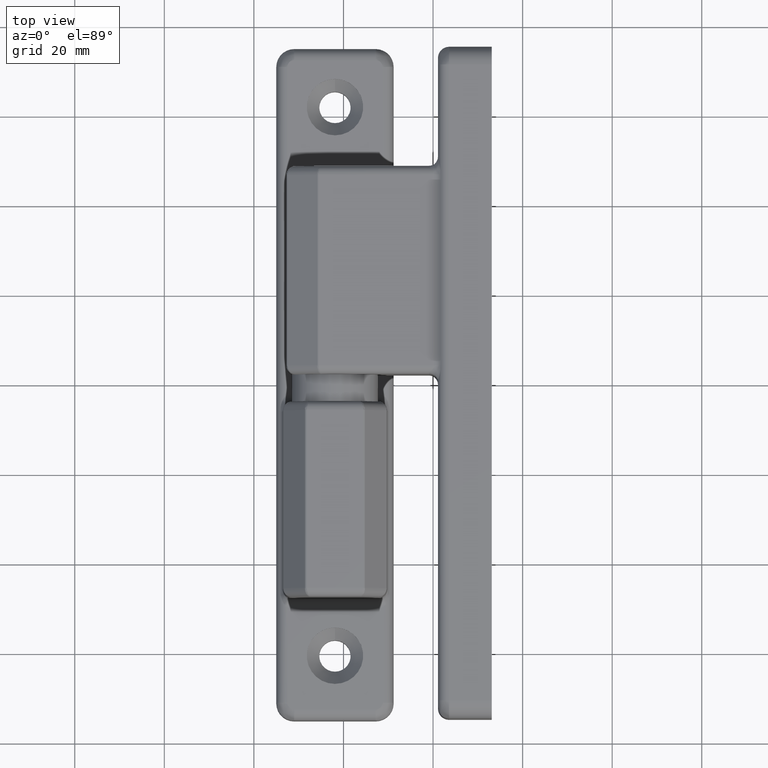
[diagram: clean part render]
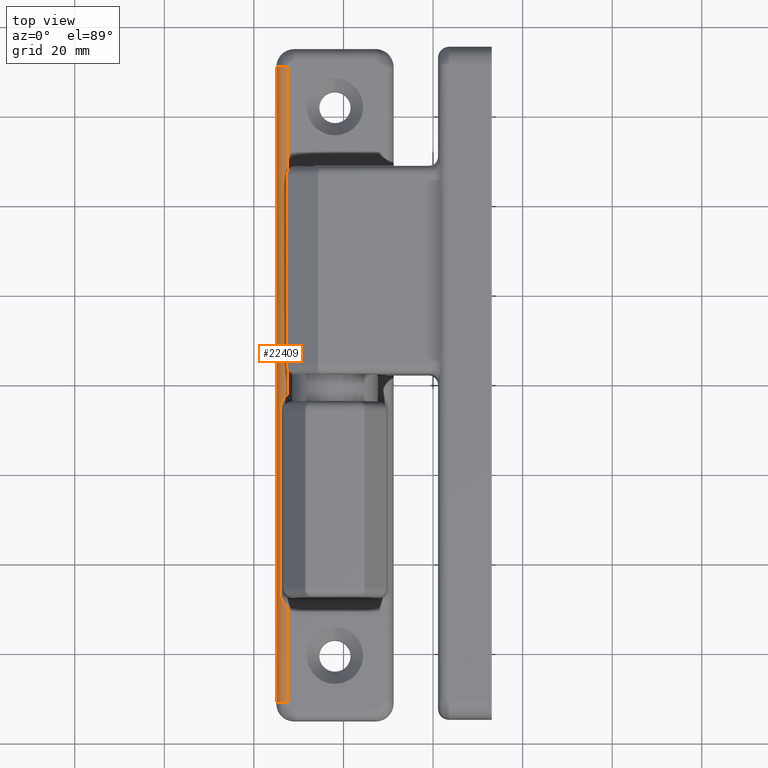
[diagram: same view with one face highlighted and labeled with its STEP entity id]
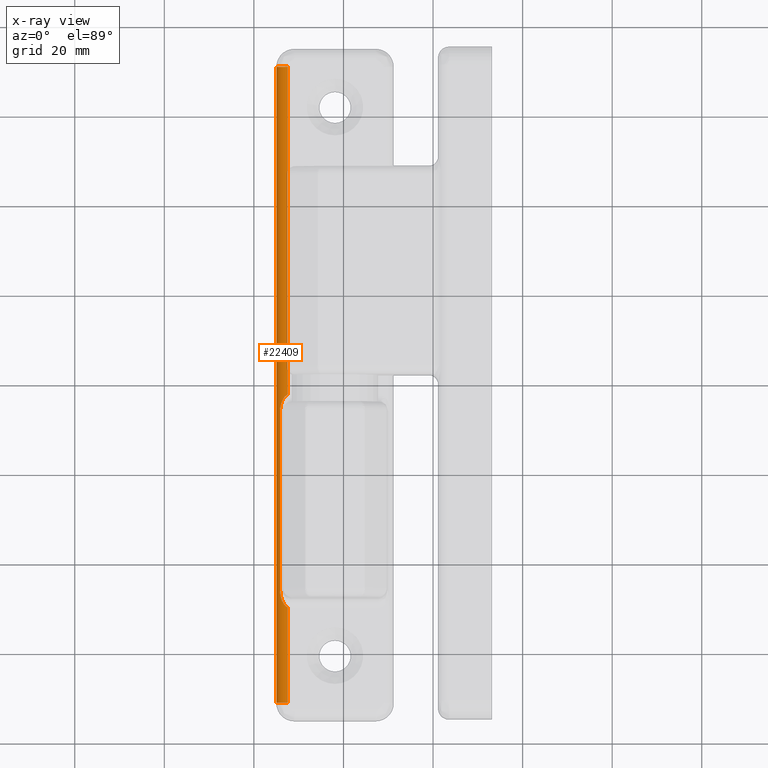
[diagram: x-ray of the same camera — body ghosted, the highlighted face saturated]
A machine part, top view. The second image highlights one B-rep face of the part: STEP entity #22409.
The next image is the same camera in x-ray: the body ghosted, the highlighted face saturated — about 4% of this face is hidden behind the body in this view.
In plain terms, the highlighted cylindrical surface (edge-blend (fillet) strip) has radius 2.5 mm, axis along (0, 1, 0).
Its self-contained STEP definition (entity closure, byte-faithful):
#899=CYLINDRICAL_SURFACE('',#23908,2.5);
#1404=B_SPLINE_CURVE_WITH_KNOTS('',3,(#32282,#32283,#32284,#32285,#32286,
#32287),.UNSPECIFIED.,.F.,.F.,(4,1,1,4),(-0.542164704906655,-0.387260503504754,
-0.232356302102852,0.),.UNSPECIFIED.);
#1406=B_SPLINE_CURVE_WITH_KNOTS('',3,(#32338,#32339,#32340,#32341,#32342,
#32343,#32344),.UNSPECIFIED.,.F.,.F.,(4,1,1,1,4),(-0.542162887906352,-0.387259205647394,
-0.232355523388437,-0.116177761694218,0.),.UNSPECIFIED.);
#2330=CIRCLE('',#23909,2.5);
#2331=CIRCLE('',#23910,2.5);
#3899=FACE_OUTER_BOUND('',#5366,.T.);
#5366=EDGE_LOOP('',(#14109,#14110,#14111,#14112,#14113,#14114,#14115,#14116));
#6883=LINE('',#32298,#7781);
#6898=LINE('',#32451,#7796);
#6899=LINE('',#32455,#7797);
#6900=LINE('',#32458,#7798);
#7781=VECTOR('',#26399,39.7);
#7796=VECTOR('',#26456,73.2270166537926);
#7797=VECTOR('',#26459,142.);
#7798=VECTOR('',#26462,21.3270166537926);
#8698=VERTEX_POINT('',#32246);
#8700=VERTEX_POINT('',#32281);
#8702=VERTEX_POINT('',#32297);
#8704=VERTEX_POINT('',#32337);
#8721=VERTEX_POINT('',#32450);
#8722=VERTEX_POINT('',#32452);
#8723=VERTEX_POINT('',#32454);
#8724=VERTEX_POINT('',#32456);
#10674=EDGE_CURVE('',#8698,#8700,#1404,.T.);
#10677=EDGE_CURVE('',#8700,#8702,#6883,.T.);
#10680=EDGE_CURVE('',#8702,#8704,#1406,.T.);
#10708=EDGE_CURVE('',#8698,#8721,#6898,.T.);
#10709=EDGE_CURVE('',#8721,#8722,#2330,.T.);
#10710=EDGE_CURVE('',#8722,#8723,#6899,.T.);
#10711=EDGE_CURVE('',#8724,#8723,#2331,.T.);
#10712=EDGE_CURVE('',#8724,#8704,#6900,.T.);
#14109=ORIENTED_EDGE('',*,*,#10680,.F.);
#14110=ORIENTED_EDGE('',*,*,#10677,.F.);
#14111=ORIENTED_EDGE('',*,*,#10674,.F.);
#14112=ORIENTED_EDGE('',*,*,#10708,.T.);
#14113=ORIENTED_EDGE('',*,*,#10709,.T.);
#14114=ORIENTED_EDGE('',*,*,#10710,.T.);
#14115=ORIENTED_EDGE('',*,*,#10711,.F.);
#14116=ORIENTED_EDGE('',*,*,#10712,.T.);
#22409=ADVANCED_FACE('',(#3899),#899,.T.);
#23908=AXIS2_PLACEMENT_3D('',#32449,#26454,#26455);
#23909=AXIS2_PLACEMENT_3D('',#32453,#26457,#26458);
#23910=AXIS2_PLACEMENT_3D('',#32457,#26460,#26461);
#26399=DIRECTION('',(-6.12323399573676E-17,-1.,0.));
#26454=DIRECTION('center_axis',(6.12323399573676E-17,1.,0.));
#26455=DIRECTION('ref_axis',(-0.707106781186548,4.32978028117746E-17,0.707106781186548));
#26456=DIRECTION('',(6.12323399573676E-17,1.,0.));
#26457=DIRECTION('center_axis',(-6.12323399573676E-17,-1.,0.));
#26458=DIRECTION('ref_axis',(0.,0.,1.));
#26459=DIRECTION('',(-6.12323399573676E-17,-1.,0.));
#26460=DIRECTION('center_axis',(0.,-1.,0.));
#26461=DIRECTION('ref_axis',(0.,0.,1.));
#26462=DIRECTION('',(6.12323399573676E-17,1.,0.));
#32246=CARTESIAN_POINT('',(227.5,-2.22701665379259,12.));
#32281=CARTESIAN_POINT('',(225.833333333333,-6.1,11.3633899812498));
#32282=CARTESIAN_POINT('Ctrl Pts',(227.5,-2.22701665379259,12.));
#32283=CARTESIAN_POINT('Ctrl Pts',(227.222249355423,-2.35610348829418,12.));
#32284=CARTESIAN_POINT('Ctrl Pts',(226.700448529706,-2.81809574508218,11.9050310747224));
#32285=CARTESIAN_POINT('Ctrl Pts',(226.046467541582,-4.08411277926764,11.5708682939172));
#32286=CARTESIAN_POINT('Ctrl Pts',(225.833333333333,-5.32547899299049,11.3633899812498));
#32287=CARTESIAN_POINT('Ctrl Pts',(225.833333333333,-6.1,11.3633899812498));
#32297=CARTESIAN_POINT('',(225.833333333333,-45.8,11.3633899812498));
#32298=CARTESIAN_POINT('',(225.833333333333,37.45,11.3633899812498));
#32337=CARTESIAN_POINT('',(227.5,-49.6729833462074,12.));
#32338=CARTESIAN_POINT('Ctrl Pts',(225.833333333333,-45.8,11.3633899812498));
#32339=CARTESIAN_POINT('Ctrl Pts',(225.833333333333,-46.3163456075299,11.3633899812498));
#32340=CARTESIAN_POINT('Ctrl Pts',(225.948512761901,-47.334055119736,11.4740750780995));
#32341=CARTESIAN_POINT('Ctrl Pts',(226.354149756626,-48.4773751143646,11.7453321371659));
#32342=CARTESIAN_POINT('Ctrl Pts',(226.892332622829,-49.2712320638228,11.9465893979145));
#32343=CARTESIAN_POINT('Ctrl Pts',(227.291687714703,-49.5761685447956,12.));
#32344=CARTESIAN_POINT('Ctrl Pts',(227.5,-49.6729833462074,12.));
#32449=CARTESIAN_POINT('Origin',(227.5,37.45,9.5));
#32450=CARTESIAN_POINT('',(227.5,71.,12.));
#32451=CARTESIAN_POINT('',(227.5,37.45,12.));
#32452=CARTESIAN_POINT('',(225.,71.,9.5));
#32453=CARTESIAN_POINT('Origin',(227.5,71.,9.5));
#32454=CARTESIAN_POINT('',(225.,-71.,9.5));
#32455=CARTESIAN_POINT('',(225.,37.45,9.5));
#32456=CARTESIAN_POINT('',(227.5,-71.,12.));
#32457=CARTESIAN_POINT('Origin',(227.5,-71.,9.5));
#32458=CARTESIAN_POINT('',(227.5,37.45,12.));